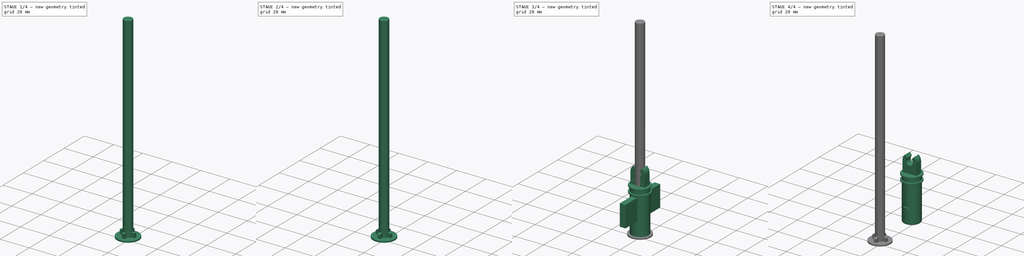
[diagram: build sequence overview — one tinted view per stage of 4, left to right]
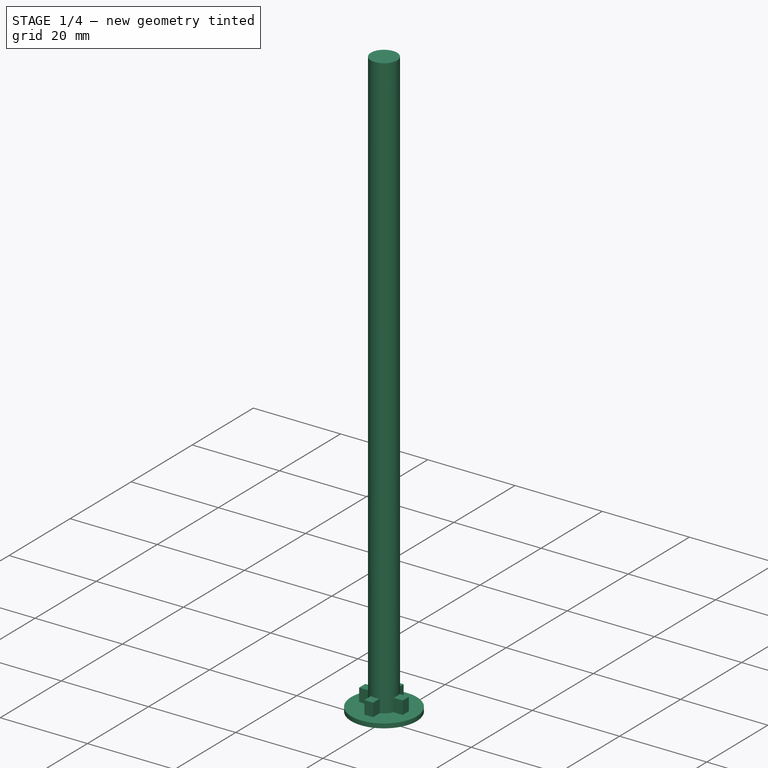
[diagram: stage 1 of 4 — iso view after this stage's code; geometry added in this stage tinted green]
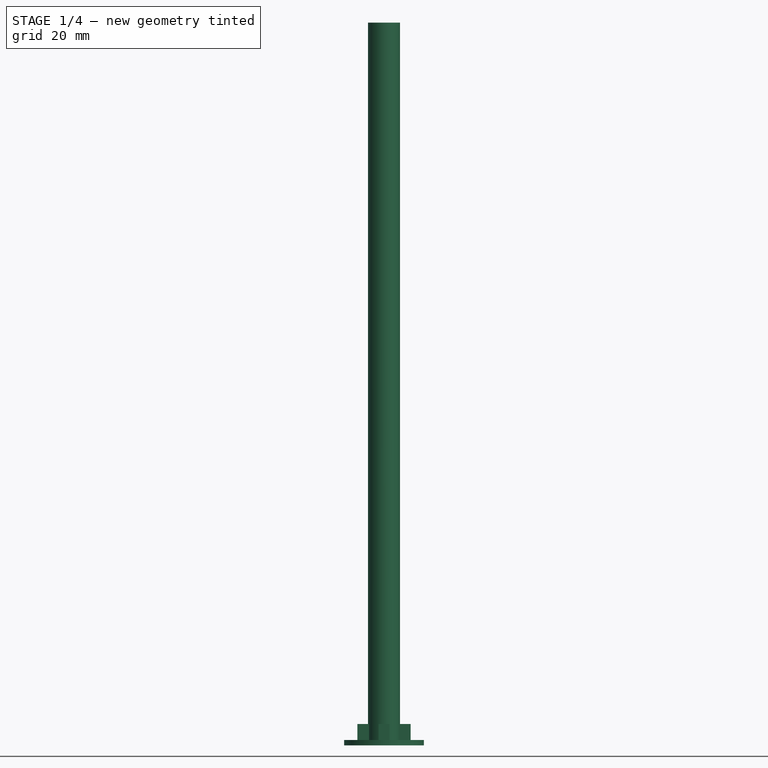
[diagram: stage 1 of 4 — front view after this stage's code; geometry added in this stage tinted green]
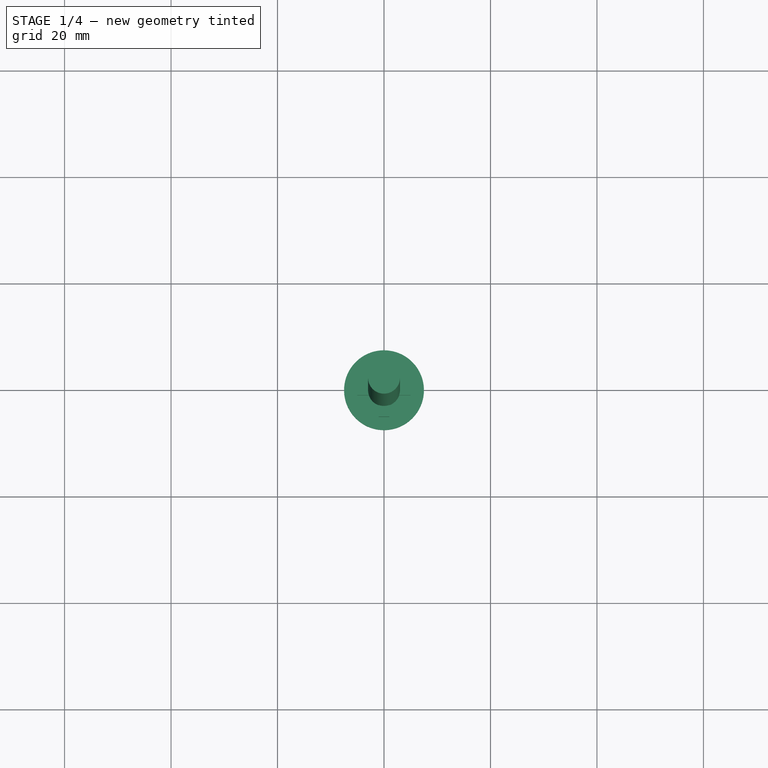
[diagram: stage 1 of 4 — top view after this stage's code; geometry added in this stage tinted green]
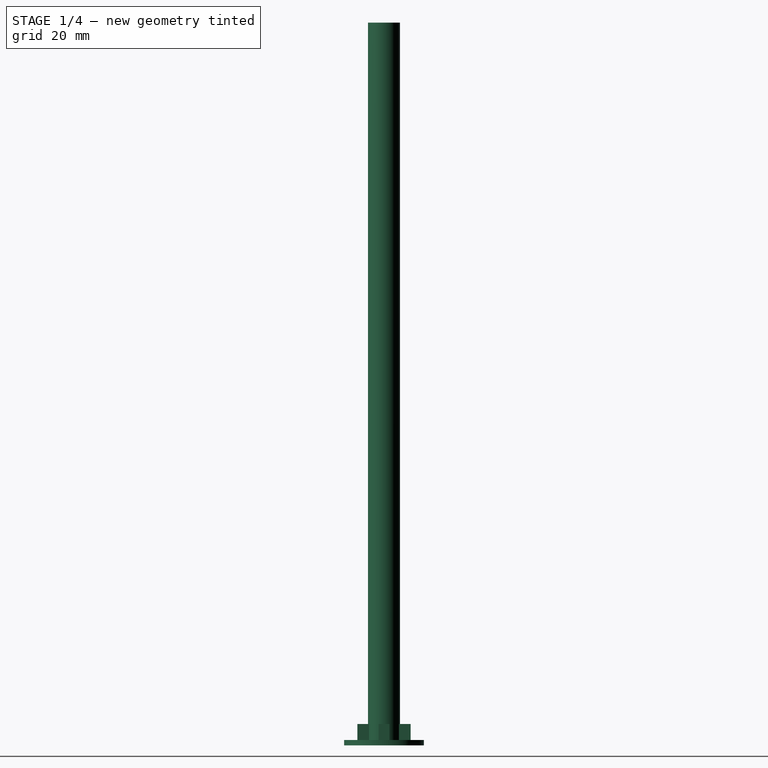
[diagram: stage 1 of 4 — right view after this stage's code; geometry added in this stage tinted green]
FCSTD DOCUMENT  (FreeCAD 0.15R4671 (Git))
Label: backSuspension
License: All rights reserved
LicenseURL: http://en.wikipedia.org/wiki/All_rights_reserved
objects: Sketcher::SketchObject×6, PartDesign::Fillet×2, Part::MultiFuse×2, PartDesign::Pad×2, App::DocumentObjectGroup×2, PartDesign::Pocket×1, Part::Cut×1, PartDesign::Revolution×1
note: 19 computed .brp shape members not serialized (recipe doc carries the construction recipe); baked Part::Feature solids carry a one-line shape summary decoded from their .brp

FEATURE [App::DocumentObjectGroup] Group  label="upperPart"
  Group = -> [Cut]
FEATURE [Sketcher::SketchObject] Sketch005
  Placement = pos=(0,0,0) rot=(-1,0,0;4.71239rad)
  sketch-geometry (6):
    g0: LineSegment StartX=0 StartY=0 StartZ=0 EndX=7.5 EndY=0 EndZ=0
    g1: LineSegment StartX=7.5 StartY=0 StartZ=0 EndX=7.5 EndY=1 EndZ=0
    g2: LineSegment StartX=7.5 StartY=1 StartZ=0 EndX=3 EndY=1 EndZ=0
    g3: LineSegment StartX=3 StartY=1 StartZ=0 EndX=3 EndY=135.737 EndZ=0
    g4: LineSegment StartX=3 StartY=135.737 StartZ=0 EndX=0 EndY=135.737 EndZ=0
    g5: LineSegment StartX=0 StartY=135.737 StartZ=0 EndX=0 EndY=0 EndZ=0
  constraints (16):
    c: Coincident(g-1,g0)
    c: Horizontal(g0)
    c: Coincident(g0,g1)
    c: Vertical(g1)
    c: Coincident(g1,g2)
    c: Horizontal(g2)
    c: Coincident(g2,g3)
    c: Vertical(g3)
    c: Coincident(g3,g4)
    c: Horizontal(g4)
    c: Coincident(g4,g5)
    c: Coincident(g5,g0)
    c: Vertical(g5)
    c: DistanceX(g0) = 7.5
    c: DistanceY(g1) = 1
    c: DistanceX(g4) = -3
FEATURE [PartDesign::Revolution] Revolution001
  Angle = 360
  Axis = (0,0,1)
  Base = (0,0,0)
  Placement = pos=(0,0,0) rot=(-1,0,0;4.71239rad)
  ReferenceAxis = -> Sketch005 [V_Axis]
  Reversed = true
  Sketch = -> Sketch005
FEATURE [Sketcher::SketchObject] Sketch006
  Placement = pos=(0,0,1) rot=(0,0,1;3.14159rad)
  Support = -> Revolution001 [Face3]
  sketch-geometry (12):
    g0: LineSegment StartX=-5 StartY=1 StartZ=0 EndX=-5 EndY=-1 EndZ=0
    g1: LineSegment StartX=-5 StartY=-1 StartZ=0 EndX=-1 EndY=-1 EndZ=0
    g2: LineSegment StartX=-1 StartY=-1 StartZ=0 EndX=-1 EndY=-5 EndZ=0
    g3: LineSegment StartX=-1 StartY=-5 StartZ=0 EndX=1 EndY=-5 EndZ=0
    g4: LineSegment StartX=1 StartY=-5 StartZ=0 EndX=1 EndY=-1 EndZ=0
    g5: LineSegment StartX=1 StartY=-1 StartZ=0 EndX=5 EndY=-1 EndZ=0
    g6: LineSegment StartX=5 StartY=-1 StartZ=0 EndX=5 EndY=1 EndZ=0
    g7: LineSegment StartX=5 StartY=1 StartZ=0 EndX=1 EndY=1 EndZ=0
    g8: LineSegment StartX=1 StartY=1 StartZ=0 EndX=1 EndY=5 EndZ=0
    g9: LineSegment StartX=1 StartY=5 StartZ=0 EndX=-1 EndY=5 EndZ=0
    g10: LineSegment StartX=-1 StartY=5 StartZ=0 EndX=-1 EndY=1 EndZ=0
    g11: LineSegment StartX=-1 StartY=1 StartZ=0 EndX=-5 EndY=1 EndZ=0
  constraints (35):
    c: Vertical(g0)
    c: Coincident(g0,g1)
    c: Horizontal(g1)
    c: Coincident(g1,g2)
    c: Vertical(g2)
    c: Coincident(g2,g3)
    c: Horizontal(g3)
    c: Coincident(g3,g4)
    c: Vertical(g4)
    c: Coincident(g4,g5)
    c: Horizontal(g5)
    c: Coincident(g5,g6)
    c: Vertical(g6)
    c: Coincident(g6,g7)
    c: Horizontal(g7)
    c: Coincident(g7,g8)
    c: Vertical(g8)
    c: Coincident(g8,g9)
    c: Horizontal(g9)
    c: Coincident(g9,g10)
    c: Vertical(g10)
    c: Coincident(g10,g11)
    c: Coincident(g11,g0)
    c: DistanceY(g6) = 2
    c: Symmetric(g5,g6,g-1)
    c: DistanceX(g5) = 4
    c: Symmetric(g4,g1,g-2)
    c: Equal(g6,g0)
    c: Equal(g11,g7)
    c: Equal(g5,g7)
    c: Equal(g8,g10)
    c: DistanceX(g9) = -2
    c: Symmetric(g8,g9,g-2)
    c: DistanceY(g8) = 4
    c: DistanceY(g2) = -4
FEATURE [PartDesign::Pad] Pad002
  Length = 3
  Length2 = 100
  Placement = pos=(0,0,0) rot=(-1,0,0;4.71239rad)
  Sketch = -> Sketch006
  Type = 0
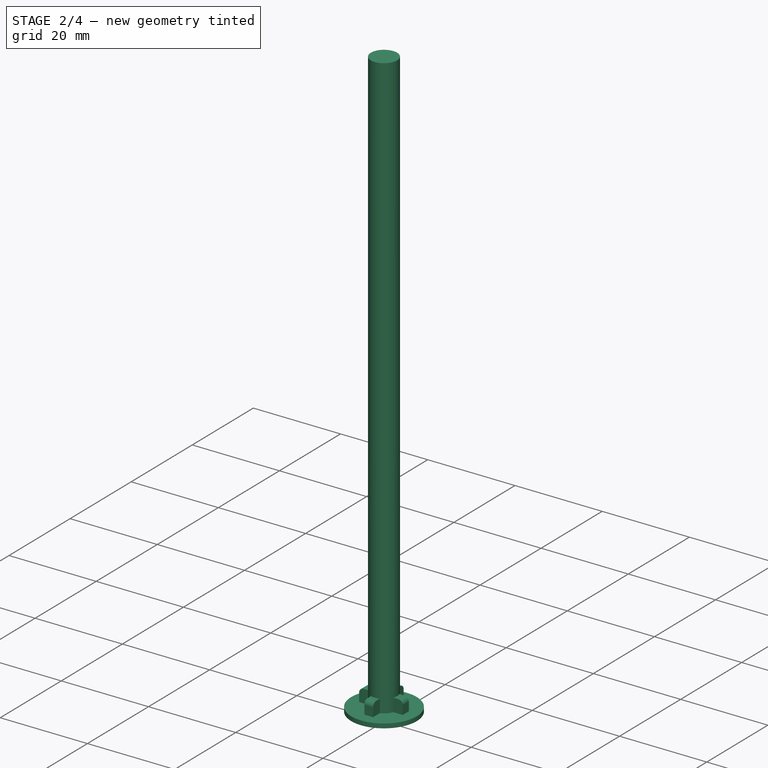
[diagram: stage 2 of 4 — iso view after this stage's code; geometry added in this stage tinted green]
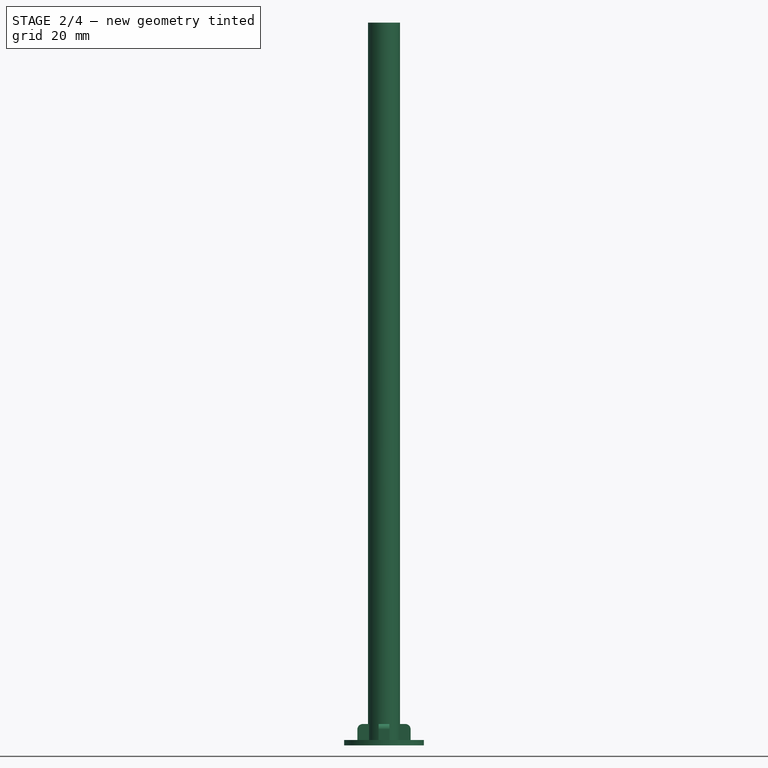
[diagram: stage 2 of 4 — front view after this stage's code; geometry added in this stage tinted green]
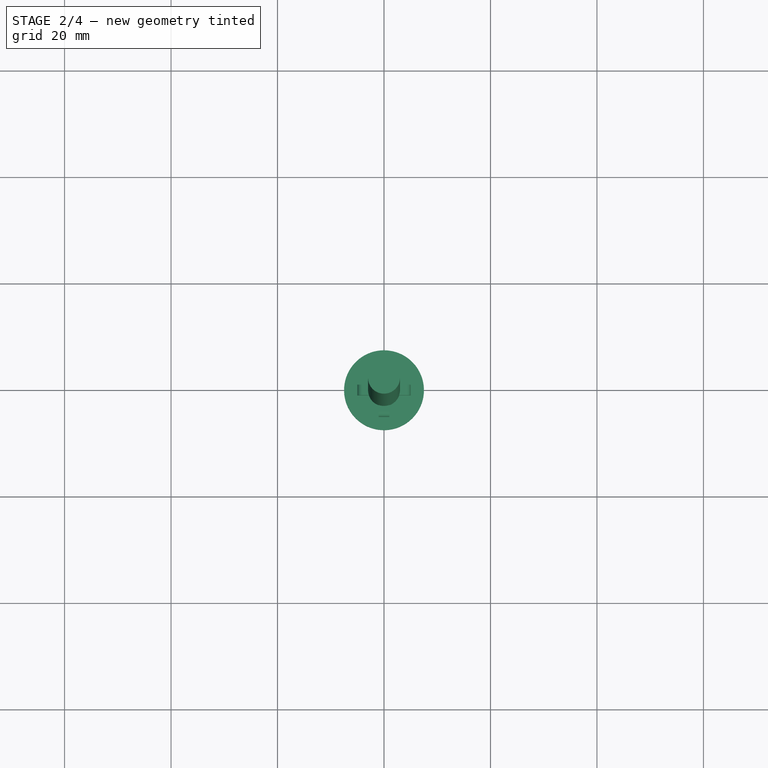
[diagram: stage 2 of 4 — top view after this stage's code; geometry added in this stage tinted green]
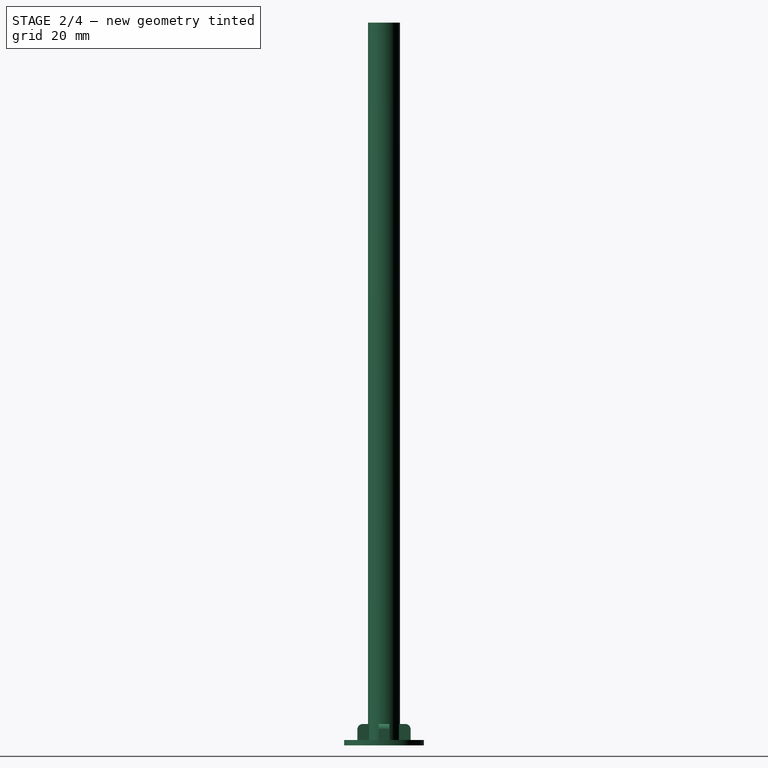
[diagram: stage 2 of 4 — right view after this stage's code; geometry added in this stage tinted green]
FEATURE [Part::MultiFuse] Fusion001
  Shapes = -> [Revolution001,Pad002]
FEATURE [PartDesign::Fillet] Fillet003
  Base = -> Fusion001 [Edge48,Edge43,Edge38,Edge53]
  Radius = 1
FEATURE [Sketcher::SketchObject] Sketch007
  Placement = pos=(0,0,0) rot=(-1,0,0;4.71239rad)
FEATURE [App::DocumentObjectGroup] Group001  label="lowerPart"
  Group = -> [Fusion001,Fillet003,Sketch007,Sketch002]
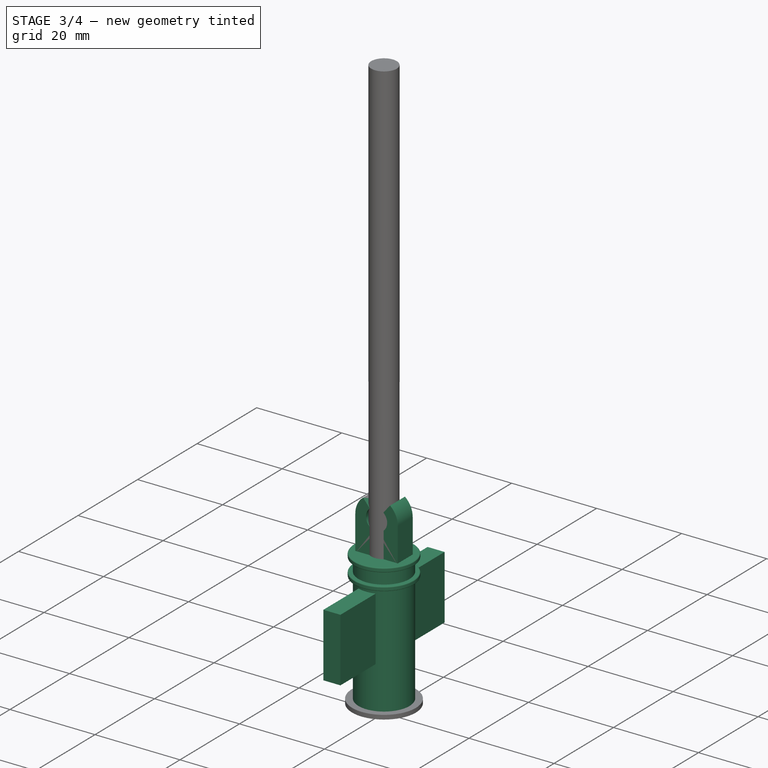
[diagram: stage 3 of 4 — iso view after this stage's code; geometry added in this stage tinted green]
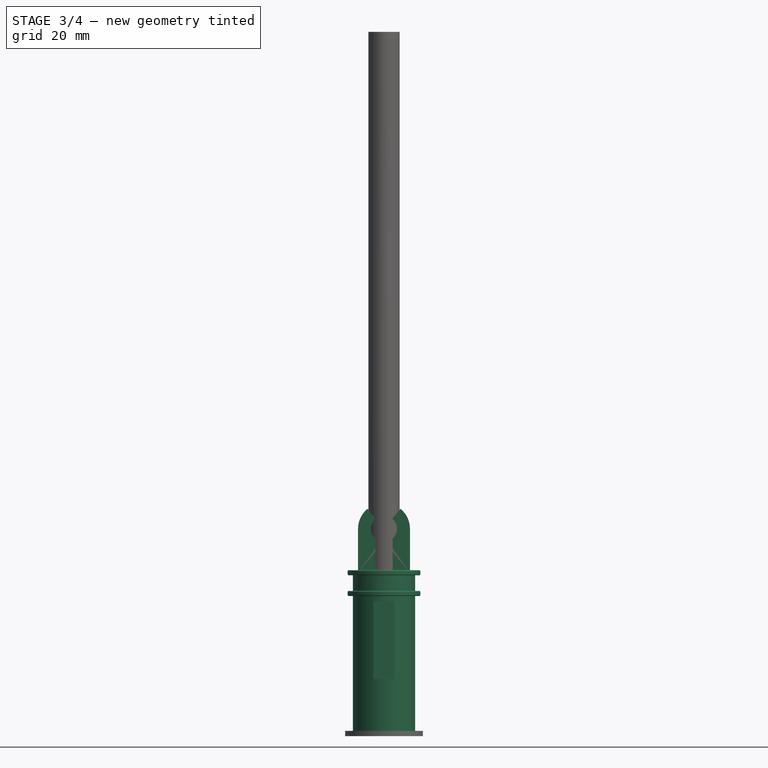
[diagram: stage 3 of 4 — front view after this stage's code; geometry added in this stage tinted green]
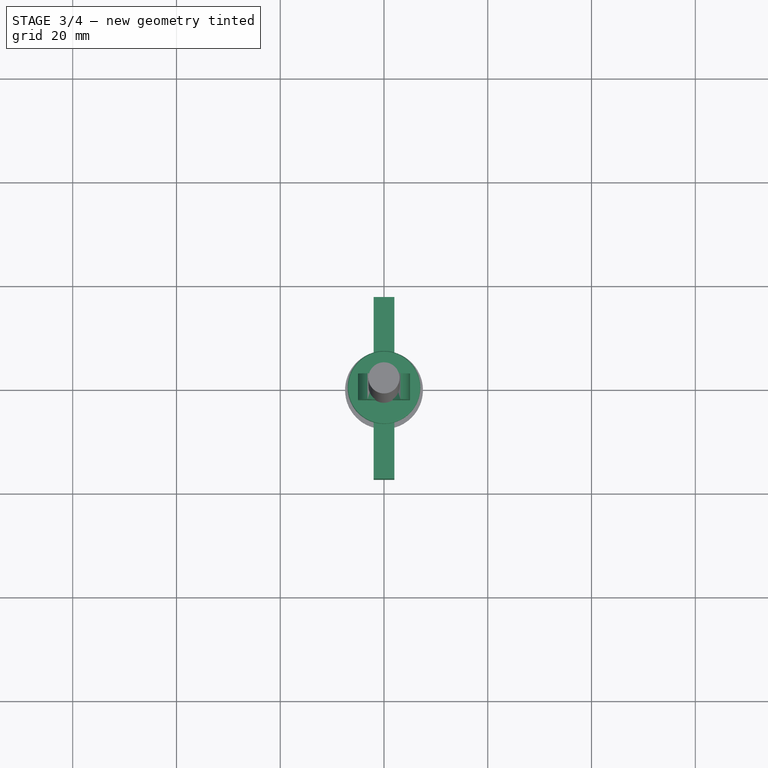
[diagram: stage 3 of 4 — top view after this stage's code; geometry added in this stage tinted green]
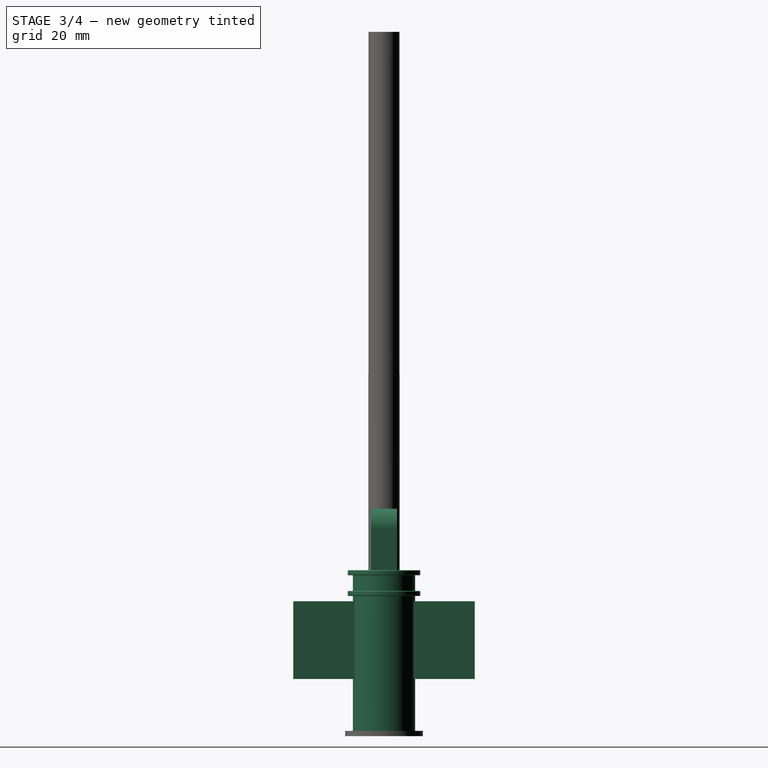
[diagram: stage 3 of 4 — right view after this stage's code; geometry added in this stage tinted green]
FEATURE [PartDesign::Fillet] Fillet002
  Placement = pos=(0,0,0) rot=(1,0,0;1.5708rad)
  Radius = 0.2
FEATURE [Sketcher::SketchObject] Sketch002
  Placement = pos=(0,0,0) rot=(1,0,0;1.5708rad)
  sketch-geometry (5):
    g0: ArcOfCircle CenterX=0 CenterY=-7.83609 CenterZ=0 NormalX=0 NormalY=0 NormalZ=1 Radius=5 StartAngle=3.25e-09 EndAngle=3.14159
    g1: LineSegment StartX=-5 StartY=-7.83609 StartZ=0 EndX=-5 EndY=-16.2366 EndZ=0
    g2: LineSegment StartX=-5 StartY=-16.2366 StartZ=0 EndX=5 EndY=-16.2366 EndZ=0
    g3: LineSegment StartX=5 StartY=-16.2366 StartZ=0 EndX=5 EndY=-7.83609 EndZ=0
    g4: Circle CenterX=0 CenterY=-7.83609 CenterZ=0 NormalX=0 NormalY=0 NormalZ=1 Radius=2.5
  constraints (13):
    c: PointOnObject(g0,g-2)
    c: Coincident(g1,g0)
    c: Vertical(g1)
    c: Coincident(g1,g2)
    c: Horizontal(g2)
    c: Coincident(g2,g3)
    c: Vertical(g3)
    c: Coincident(g0,g3)
    c: Coincident(g4,g0)
    c: Radius(g4) = 2.5
    c: DistanceX(g2) = 10
    c: Radius(g0) = 5
    c: Symmetric(g0,g0,g-2)
FEATURE [Sketcher::SketchObject] Sketch003
  Placement = pos=(0,-2.5,0) rot=(1,0,0;1.5708rad)
  sketch-geometry (3):
    g0: ArcOfCircle CenterX=0 CenterY=40.0083 CenterZ=0 NormalX=0 NormalY=0 NormalZ=1 Radius=6 StartAngle=0.875441 EndAngle=2.26615
    g1: LineSegment StartX=-3.84395 StartY=44.6153 StartZ=0 EndX=0 EndY=40.0083 EndZ=0
    g2: LineSegment StartX=0 StartY=40.0083 StartZ=0 EndX=3.84395 EndY=44.6153 EndZ=0
  constraints (7):
    c: PointOnObject(g0,g-2)
    c: Radius(g0) = 6
    c: Coincident(g1,g0)
    c: Coincident(g1,g2)
    c: Coincident(g2,g0)
    c: Coincident(g0,g1)
    c: Symmetric(g0,g0,g-2)
FEATURE [PartDesign::Pocket] Pocket001
  Length = 5
  Midplane = true
  Placement = pos=(0,0,0) rot=(1,0,0;1.5708rad)
  Sketch = -> Sketch003
  Type = 1
FEATURE [Sketcher::SketchObject] Sketch004
  Placement = pos=(0,0,0) rot=(1,0,0;1.5708rad)
  sketch-geometry (4):
    g0: LineSegment StartX=2 StartY=11 StartZ=0 EndX=-2 EndY=11 EndZ=0
    g1: LineSegment StartX=-2 StartY=11 StartZ=0 EndX=-2 EndY=26 EndZ=0
    g2: LineSegment StartX=-2 StartY=26 StartZ=0 EndX=2 EndY=26 EndZ=0
    g3: LineSegment StartX=2 StartY=26 StartZ=0 EndX=2 EndY=11 EndZ=0
  constraints (12):
    c: Coincident(g0,g1)
    c: Coincident(g1,g2)
    c: Coincident(g2,g3)
    c: Coincident(g3,g0)
    c: Horizontal(g0)
    c: Horizontal(g2)
    c: Vertical(g1)
    c: Vertical(g3)
    c: DistanceX(g0) = -4
    c: DistanceY(g3) = -15
    c: Symmetric(g2,g1,g-2)
    c: DistanceY(g-1,g1) = 26
FEATURE [PartDesign::Pad] Pad001
  Length = 35
  Length2 = 100
  Midplane = true
  Placement = pos=(0,0,0) rot=(1,0,0;1.5708rad)
  Sketch = -> Sketch004
  Type = 0
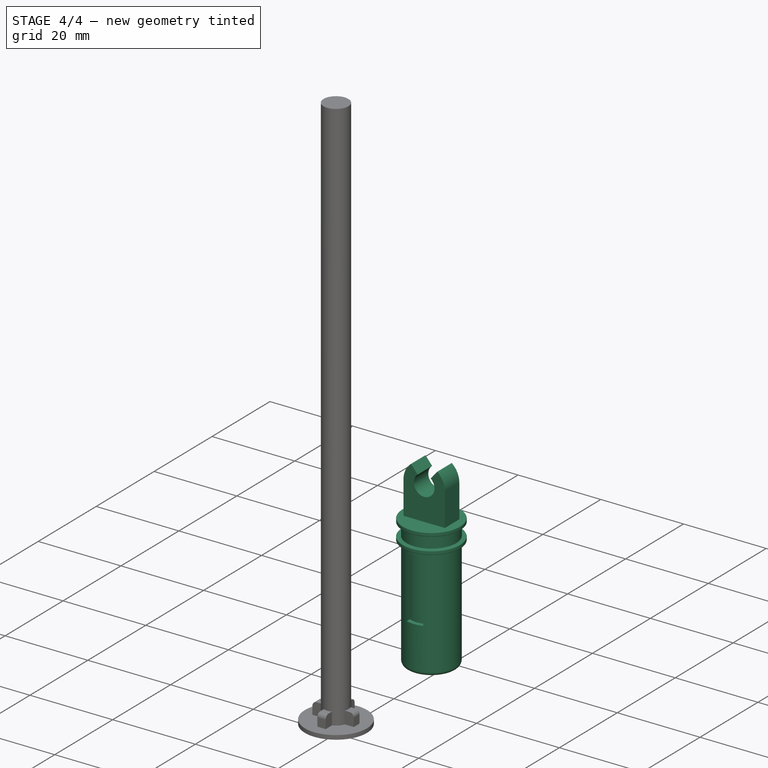
[diagram: stage 4 of 4 — iso view after this stage's code; geometry added in this stage tinted green]
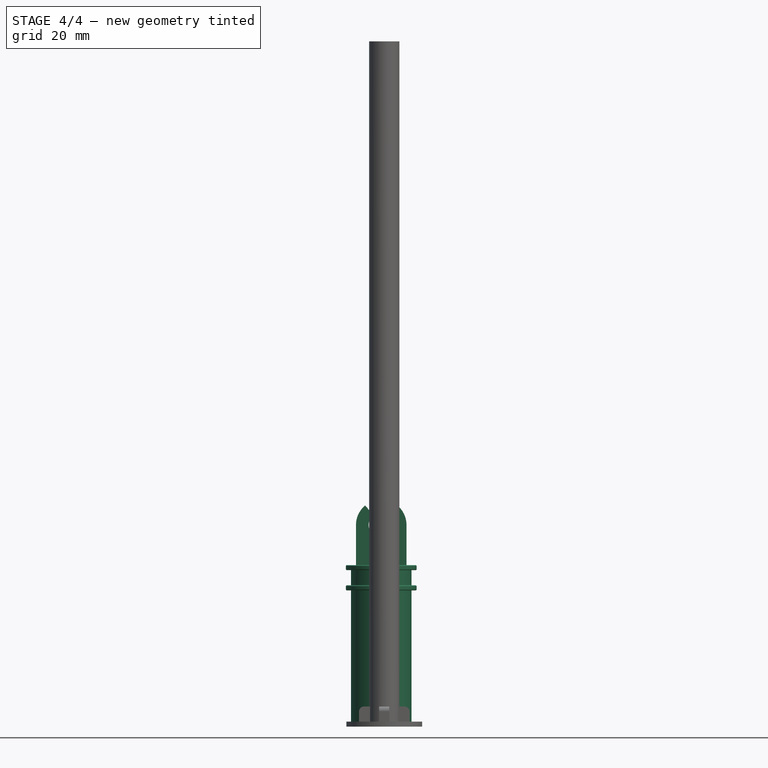
[diagram: stage 4 of 4 — front view after this stage's code; geometry added in this stage tinted green]
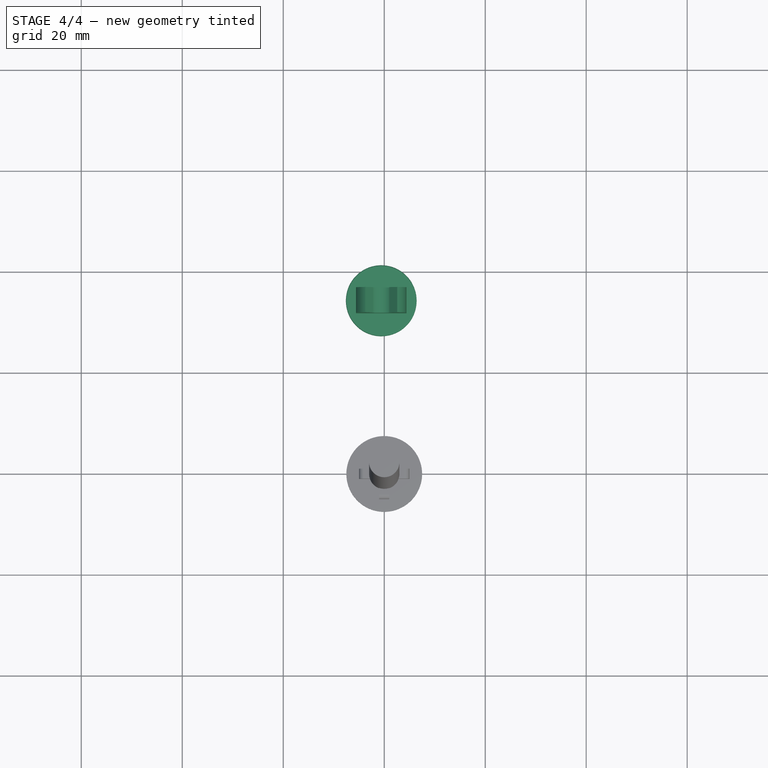
[diagram: stage 4 of 4 — top view after this stage's code; geometry added in this stage tinted green]
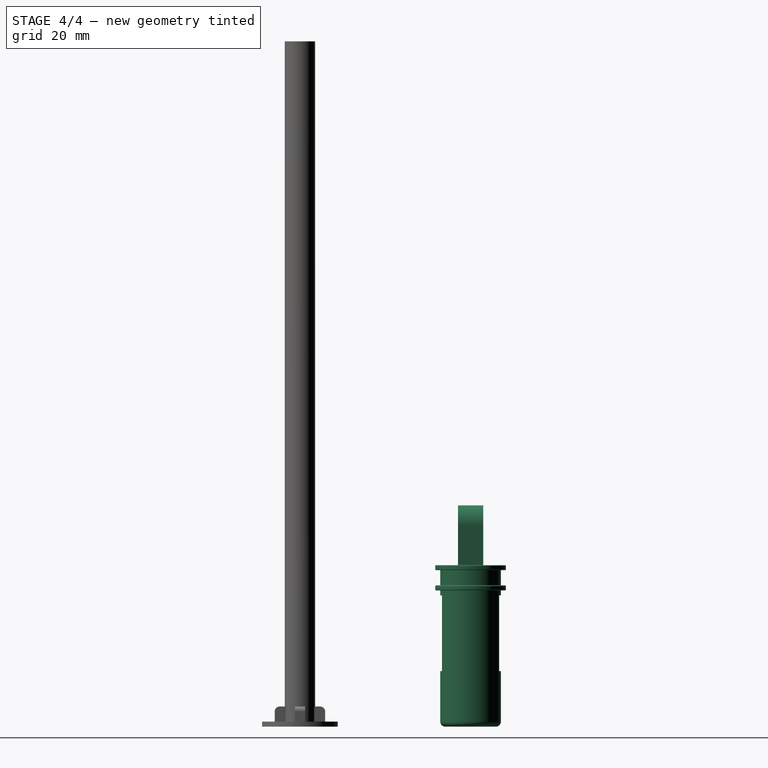
[diagram: stage 4 of 4 — right view after this stage's code; geometry added in this stage tinted green]
FEATURE [Part::MultiFuse] Fusion
  Shapes = -> [Pocket001,Fillet002]
FEATURE [Part::Cut] Cut
  Base = -> Fusion
  Placement = pos=(-0.591446,33.7972,0) rot=(0,0,1;0rad)
  Tool = -> Pad001
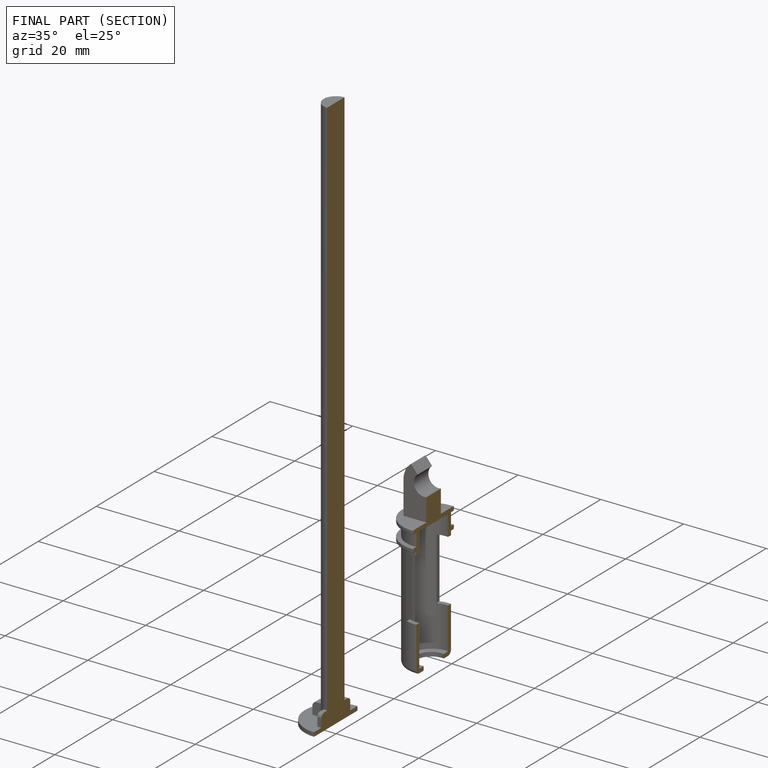
[diagram: finished part — half-section view (interior)]
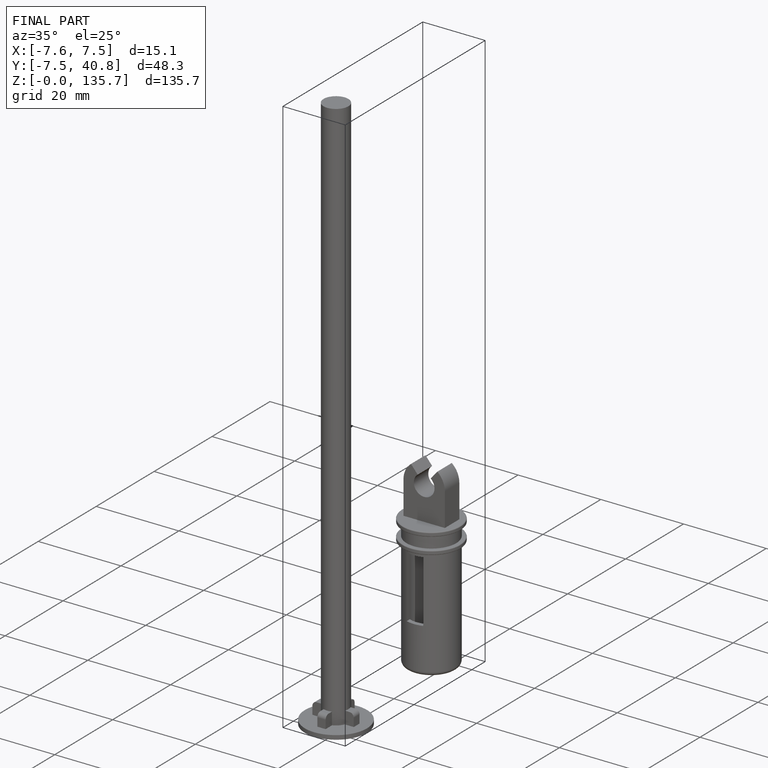
[diagram: finished part — iso view with bounding-box wireframe]
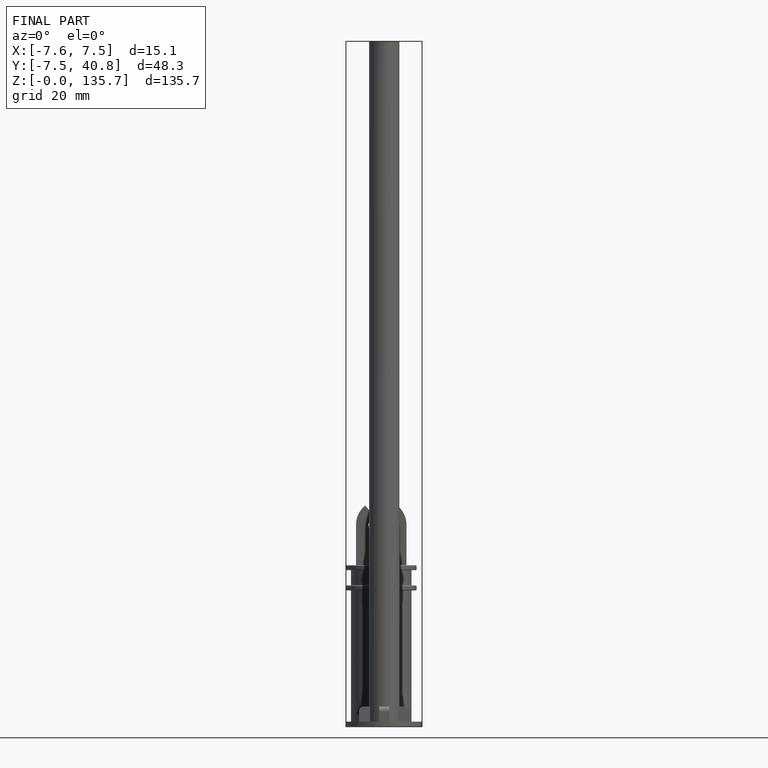
[diagram: finished part — front view with bounding-box wireframe]
